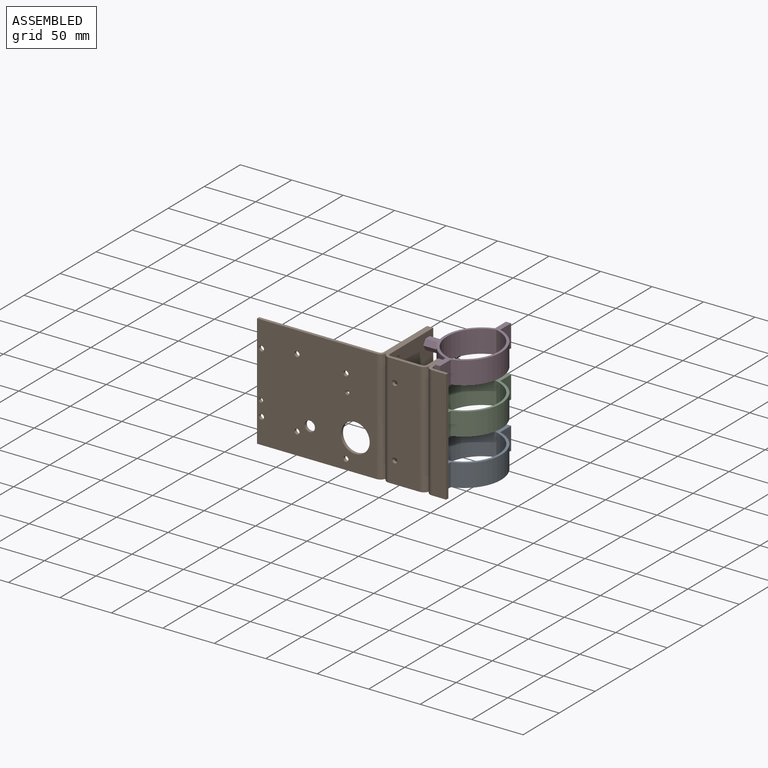
[diagram: assembled view]
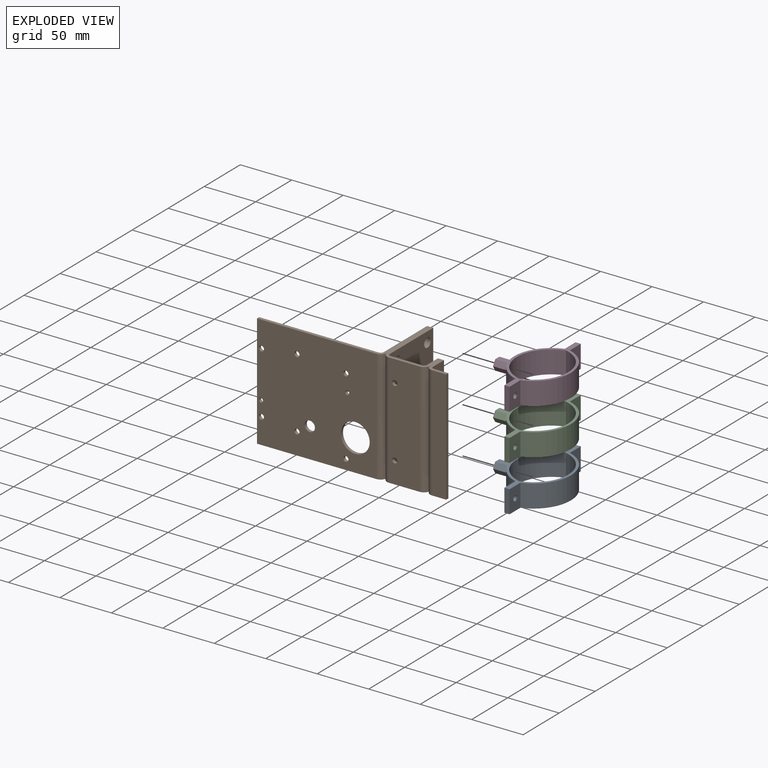
[diagram: exploded view]
GUIDED TOUR — MATED ASSEMBLY (Onshape document 4b753f03eef4fd3eba08fb76, AutoMate assembly 4b753f03eef4fd3eba08fb76_7e7e2e7f377febcd43e8f02e_78f5e5bae4203609382013f7_default)

This assembly has 4 components, labeled P0..P3 below (a component is one placed occurrence of a part; the same part can appear more than once), held together by 3 mates. A mate is a constraint between two components; its type names the relative motion it leaves free:
  CYLINDRICAL — leaves both rotation about and translation along the listed axis free.
Axis/direction vectors are unit vectors and 'through' points are millimeter coordinates, both in the assembly's world frame.

MATES
  1. CYLINDRICAL "Cylindrical 1": P3 <-> P1, axis (-1.000, 0.000, 0.000) through (-14.91, -64.95, 32.86) mm
  2. CYLINDRICAL "Cylindrical 3": P0 <-> P1, axis (-1.000, 0.000, 0.000) through (-14.91, -64.95, -57.14) mm
  3. CYLINDRICAL "Cylindrical 2": P2 <-> P1, axis (-1.000, 0.000, 0.000) through (-14.91, -64.95, -12.14) mm

ASSEMBLY ORDER
  1. P2 — the base component [order verified]
  2. P0 [order verified]
  3. P3 [order verified]
  4. P1 [order verified]
Order-tag legend:
  [order verified] — this step's position reverses a verified removal order: the component was checked to insert without passing through the ones already placed.

Of the 4 components, 3 carry the full construction recipe — the FeatureScript program that regenerates the part's solid from scratch; the rest are supplied as boundary geometry only.
Each toured component is shown spotlighted twice — in the assembled view, then in the exploded view, where a leader line traces a displaced component back to its assembled socket (saturated green if recipe-attached, orange if geometry-only; every other component desaturated gray) — followed by its recipe or geometry summary and the mates that hold it.
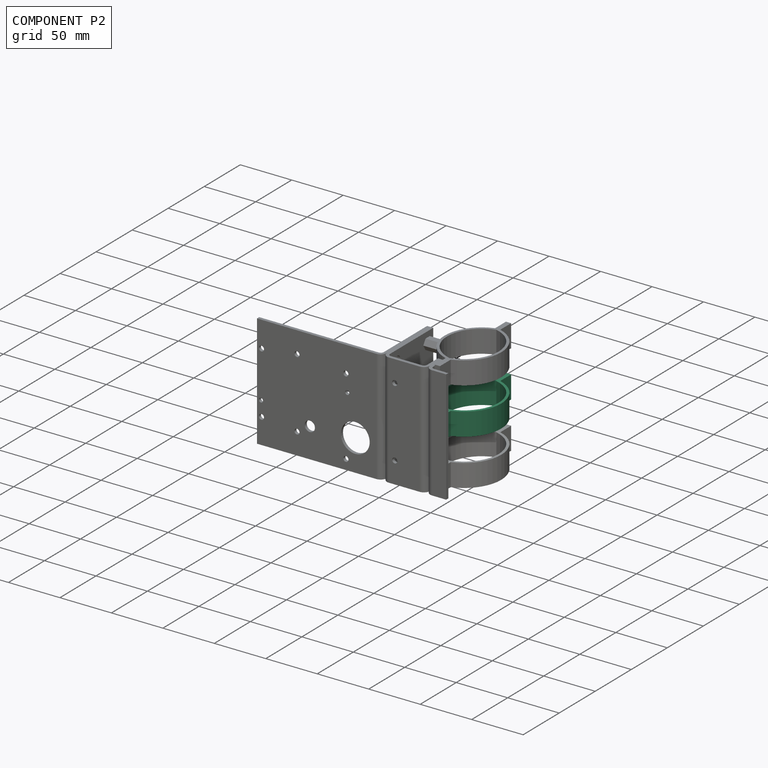
[diagram: component P2 — assembled]
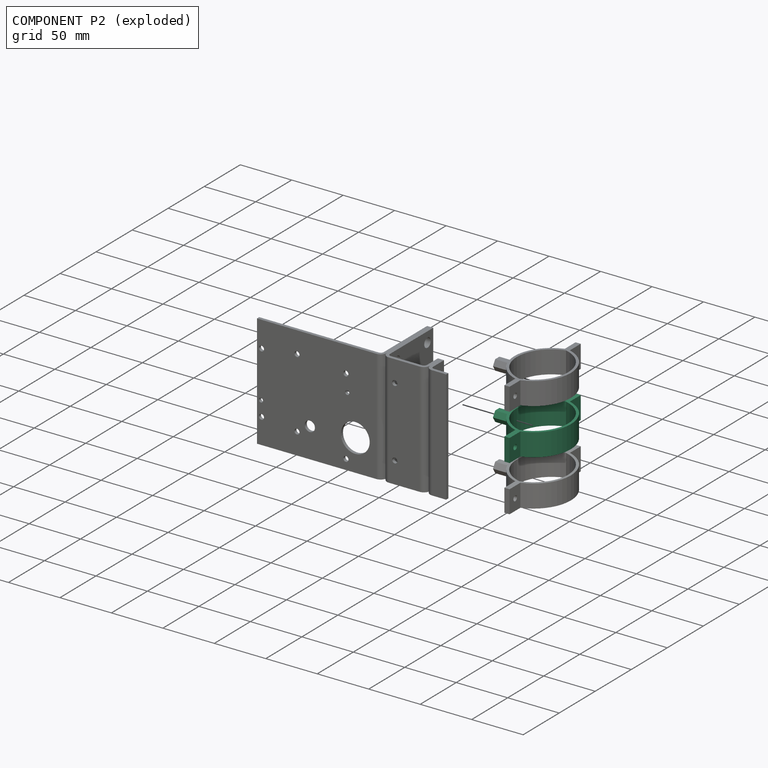
[diagram: component P2 — exploded]
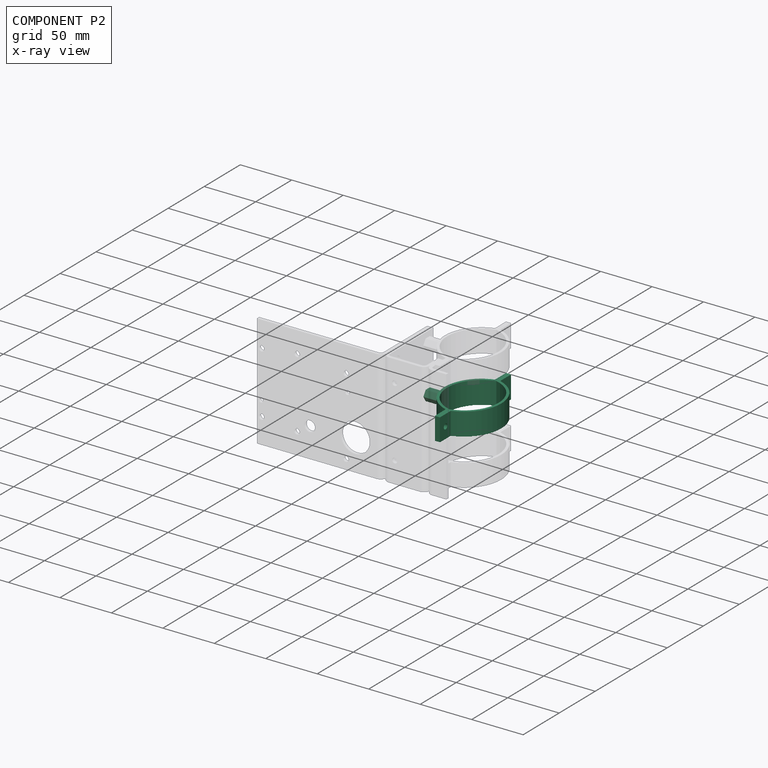
[diagram: component P2 — x-ray view]
COMPONENT P2 — same part as P0 (CADFS 00968753); its construction recipe is shown at P0.
Held by: CYLINDRICAL mate "Cylindrical 2" to P1.
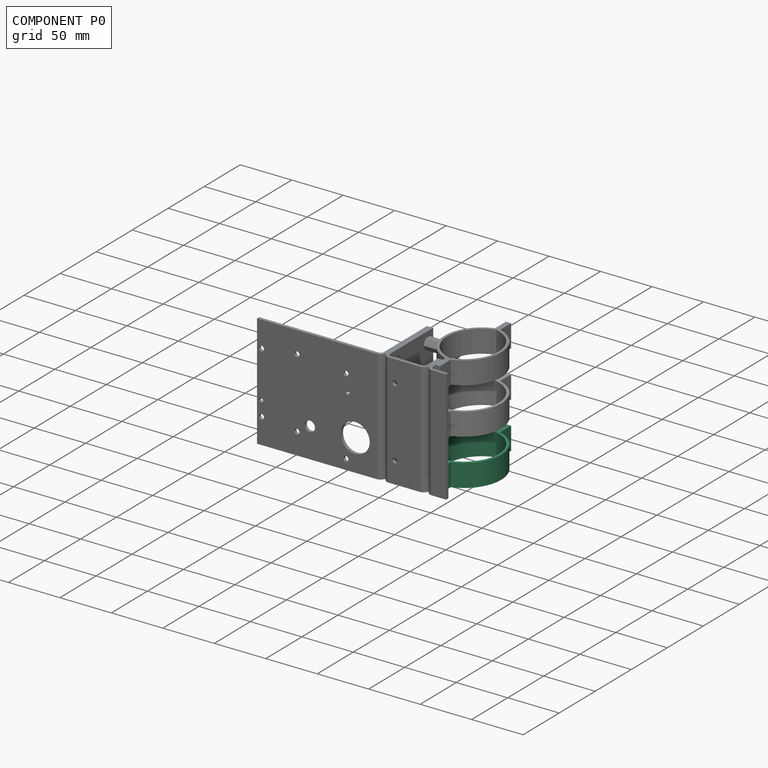
[diagram: component P0 — assembled]
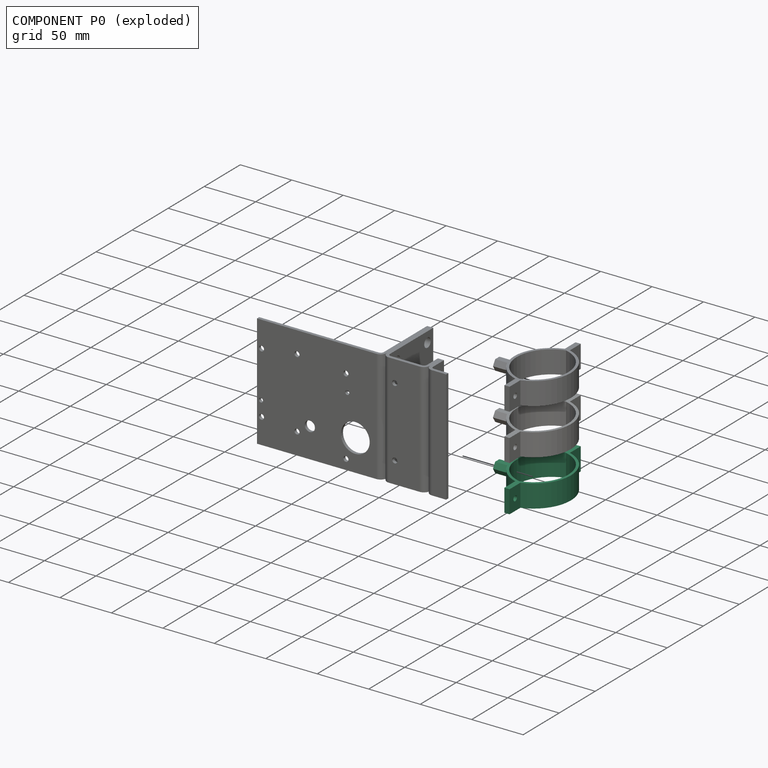
[diagram: component P0 — exploded]
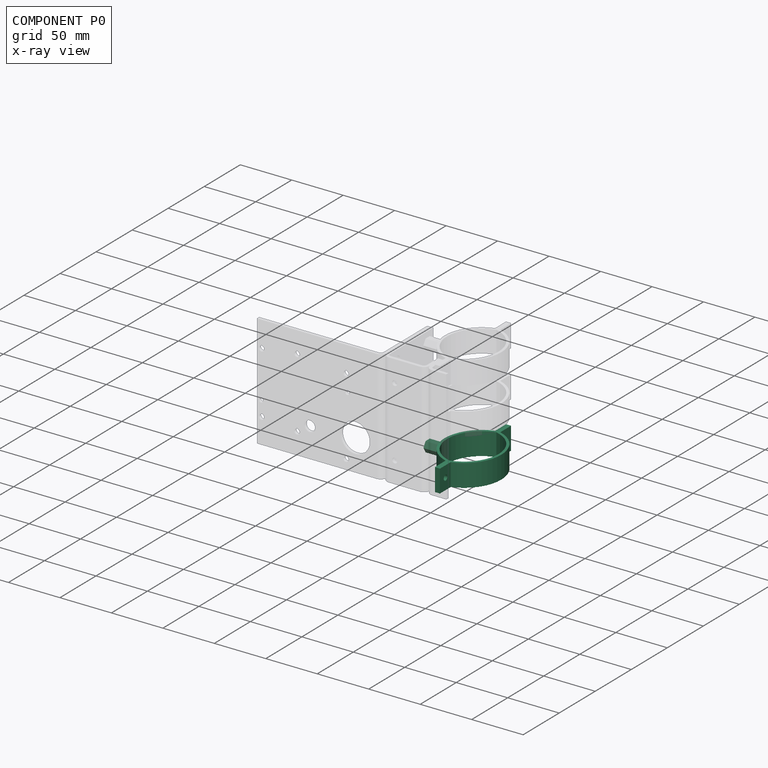
[diagram: component P0 — x-ray view]
COMPONENT P0 — recipe-attached (CADFS 00968753, mesh-verified: the recipe's output STEP matches this component's geometry to below the mesh-comparison resolution (tessellation chordal tolerance ~0.186 mm)).
Held by: CYLINDRICAL mate "Cylindrical 3" to P1.
Construction recipe (FeatureScript — the CAD program that rebuilds this solid; sketch coordinates are in the units given by the * unit suffixes, e.g. mm):

FeatureScript 1511;
import(path : "onshape/std/geometry.fs", version : "1511.0");
import(path : "onshape/std/common.fs", version : "1511.0");
const mm = millimeter;
const VERTEX = EntityType.VERTEX;
const EDGE = EntityType.EDGE;
const FACE = EntityType.FACE;
const BODY = EntityType.BODY;
function v(x, y){return vector(x, y);}
function OD(order){return orderDisambiguation(order);}
function OSD(set){return originalSetDisambiguation(set);}
function TD(topology){return topologyDisambiguation(topology);}
function TDD(query){return trueDependencyDisambiguation(query);}
function sQuery(a, b, c) {return sketchEntityQuery(a, b, c);}

annotation { "Feature Type Name" : "Feature", "Feature Type Description" : "" }
export const myFeature = defineFeature(function(context is Context, id is Id, definition is map)
    precondition{}
    {
        {
            var Q0;
            Q0=qCreatedBy(makeId("Top.planeOp"),FACE);
            var sketch = newSketch(context, id + "F0", { "sketchPlane" : qUnion([Q0])});
            skArc(sketch, "E0", {"start": v(32.5, 0) * mm, "mid": v(0, 25) * mm, "end": v(-32.5, 0) * mm});
            skLineSegment(sketch, "E1", {"start": v(-32.5, 0) * mm, "end": v(-49.37, 0) * mm});
            skLineSegment(sketch, "E2", {"start": v(-49.37, 0) * mm, "end": v(-49.37, 2.5) * mm});
            skLineSegment(sketch, "E3", {"start": v(-49.37, 2.5) * mm, "end": v(-34.37, 2.5) * mm});
            skLineSegment(sketch, "E4", {"start": v(32.5, 0) * mm, "end": v(49.37, 0) * mm});
            skLineSegment(sketch, "E5", {"start": v(49.37, 0) * mm, "end": v(49.37, 2.5) * mm});
            skLineSegment(sketch, "E6", {"start": v(49.37, 2.5) * mm, "end": v(34.37, 2.5) * mm});
            skArc(sketch, "E7", {"start": v(34.37, 2.5) * mm, "mid": v(0, 27.5) * mm, "end": v(-34.37, 2.5) * mm});
            skLineSegment(sketch, "E8.MirrorCS", {"start": v(49.37, 0) * mm, "end": v(49.37, -2.5) * mm});
            skLineSegment(sketch, "E9.MirrorCS", {"start": v(-49.37, 0) * mm, "end": v(-49.37, -2.5) * mm});
            skLineSegment(sketch, "E10.MirrorCS", {"start": v(-49.37, -2.5) * mm, "end": v(-34.37, -2.5) * mm});
            skLineSegment(sketch, "E11.MirrorCS", {"start": v(49.37, -2.5) * mm, "end": v(34.37, -2.5) * mm});
            skArc(sketch, "E12.MirrorCS", {"start": v(34.37, -2.5) * mm, "mid": v(0, -27.5) * mm, "end": v(-34.37, -2.5) * mm});
            skArc(sketch, "E13.MirrorCS", {"start": v(32.5, 0) * mm, "mid": v(0, -25) * mm, "end": v(-32.5, 0) * mm});
            skSolve(sketch);
        }
        {
            var Q0;
            Q0 = qSketchRegion(id + "F0", true);
            extrude(context, id + "F1", {"entities" : qUnion([Q0]), "depth" : 22 * mm, "offsetDistance" : 25 * mm});
        }
        {
            var Q0;
            Q0=qCreatedBy(makeId("Front.planeOp"),FACE);
            cPlane(context, id + "F2", {"entities" : qUnion([Q0]), "cplaneType" : CPlaneType.OFFSET, "offset" : 25 * mm, "width" : 150 * mm, "height" : 150 * mm});
        }
        {
            var Q0;
            Q0=qCreatedBy(id+"F2.planeOp",FACE);
            var sketch = newSketch(context, id + "F3", { "sketchPlane" : qUnion([Q0])});
            skLineSegment(sketch, "E14", {"start": v(2.93, 16) * mm, "end": v(-2.93, 16) * mm});
            skLineSegment(sketch, "E15", {"start": v(-2.93, 16) * mm, "end": v(-6, 11) * mm});
            skLineSegment(sketch, "E16", {"start": v(-6, 11) * mm, "end": v(-2.93, 6) * mm});
            skLineSegment(sketch, "E17", {"start": v(-2.93, 6) * mm, "end": v(2.93, 6) * mm});
            skLineSegment(sketch, "E18", {"start": v(2.93, 6) * mm, "end": v(6, 11) * mm});
            skLineSegment(sketch, "E19", {"start": v(2.93, 16) * mm, "end": v(6, 11) * mm});
            skSolve(sketch);
        }
        {
            var Q0;
            Q0 = qSketchRegion(id + "F3", true);
            extrude(context, id + "F4", {"entities" : qUnion([Q0]), "operationType" : NewBodyOperationType.ADD, "depth" : 19 * mm, "offsetDistance" : 25 * mm});
        }
        {
            var Q0;
            Q0=makeQuery(id+"F1.opExtrude","SWEPT_FACE",FACE,{"disambiguationData":[OSD([sQuery(id+"F0.wireOp",EDGE,"E11.MirrorCS")])]});
            var sketch = newSketch(context, id + "F5", { "sketchPlane" : qUnion([Q0])});
            skCircle(sketch, "E20", {"center": v(41.5, 11) * mm, "radius": 2.5 * mm});
            skCircle(sketch, "E21", {"center": v(-41.5, 11) * mm, "radius": 2.5 * mm});
            skSolve(sketch);
        }
        {
            var Q0;
            Q0 = qSketchRegion(id + "F5", true);
            extrude(context, id + "F6", {"entities" : qUnion([Q0]), "operationType" : NewBodyOperationType.REMOVE, "endBound" : BoundingType.UP_TO_NEXT, "oppositeDirection" : true, "depth" : 25 * mm, "offsetDistance" : 25 * mm});
        }
        {
            var Q0;
            Q0=makeQuery(id+"F4.opExtrude","CAP_FACE",FACE,{"disambiguationData":[OSD([sQuery(id+"F3.wireOp",EDGE,"E14"),sQuery(id+"F3.wireOp",EDGE,"E15"),sQuery(id+"F3.wireOp",EDGE,"E16"),sQuery(id+"F3.wireOp",EDGE,"E17"),sQuery(id+"F3.wireOp",EDGE,"E18"),sQuery(id+"F3.wireOp",EDGE,"E19")])],"isStart":false});
            var sketch = newSketch(context, id + "F7", { "sketchPlane" : qUnion([Q0])});
            skCircle(sketch, "E22", {"center": v(0, 11) * mm, "radius": 4.5 * mm});
            skSolve(sketch);
        }
        {
            var Q0;
            Q0 = qSketchRegion(id + "F7", true);
            extrude(context, id + "F8", {"entities" : qUnion([Q0]), "operationType" : NewBodyOperationType.REMOVE, "oppositeDirection" : true, "depth" : 8 * mm, "offsetDistance" : 25 * mm});
        }
    });
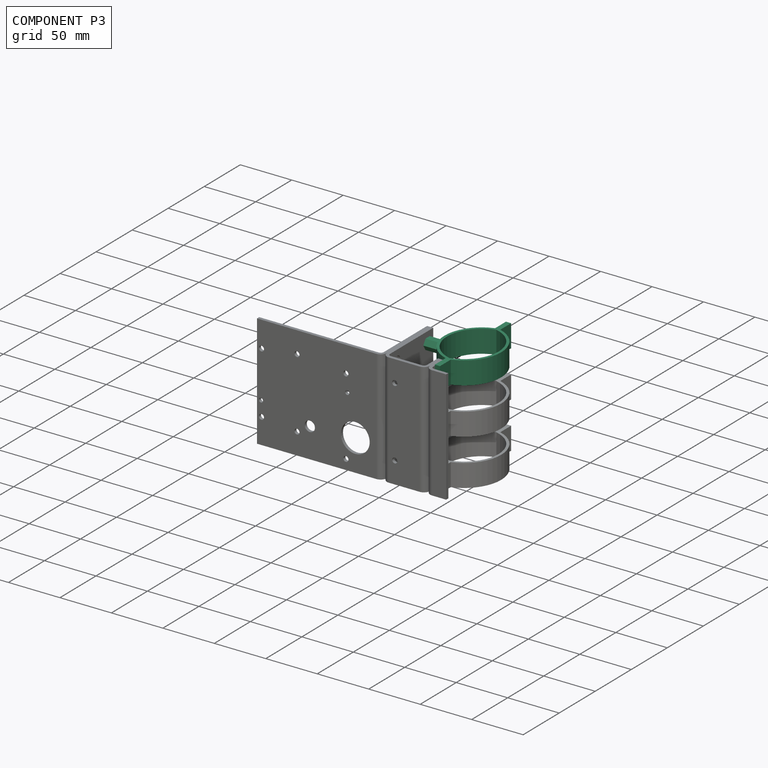
[diagram: component P3 — assembled]
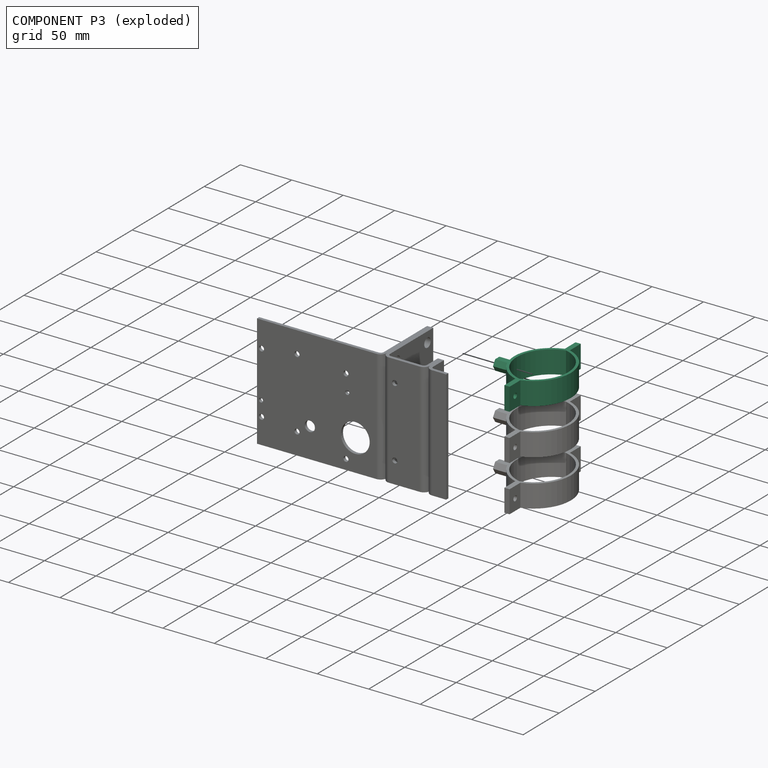
[diagram: component P3 — exploded]
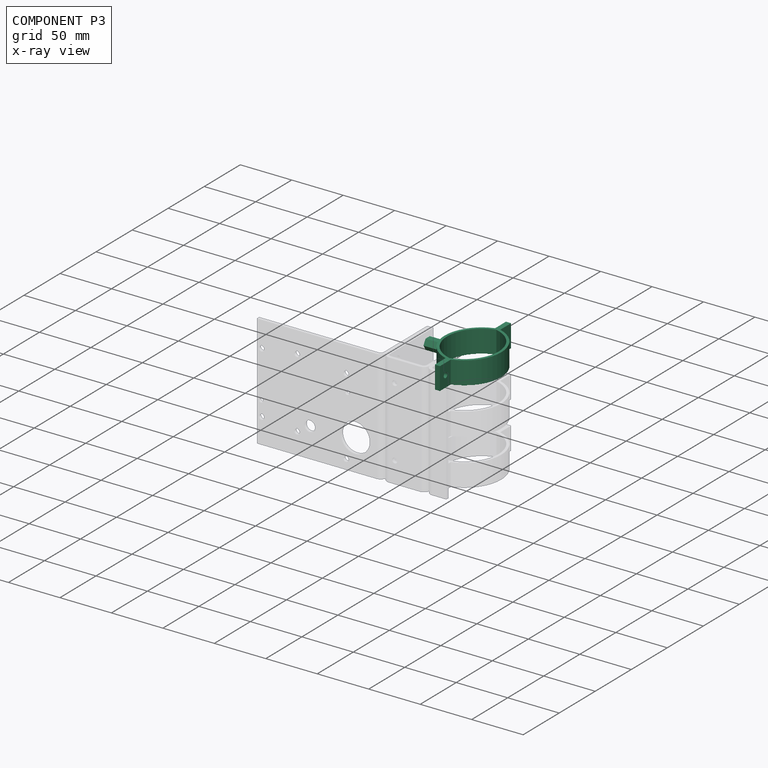
[diagram: component P3 — x-ray view]
COMPONENT P3 — same part as P0 (CADFS 00968753); its construction recipe is shown at P0.
Held by: CYLINDRICAL mate "Cylindrical 1" to P1.
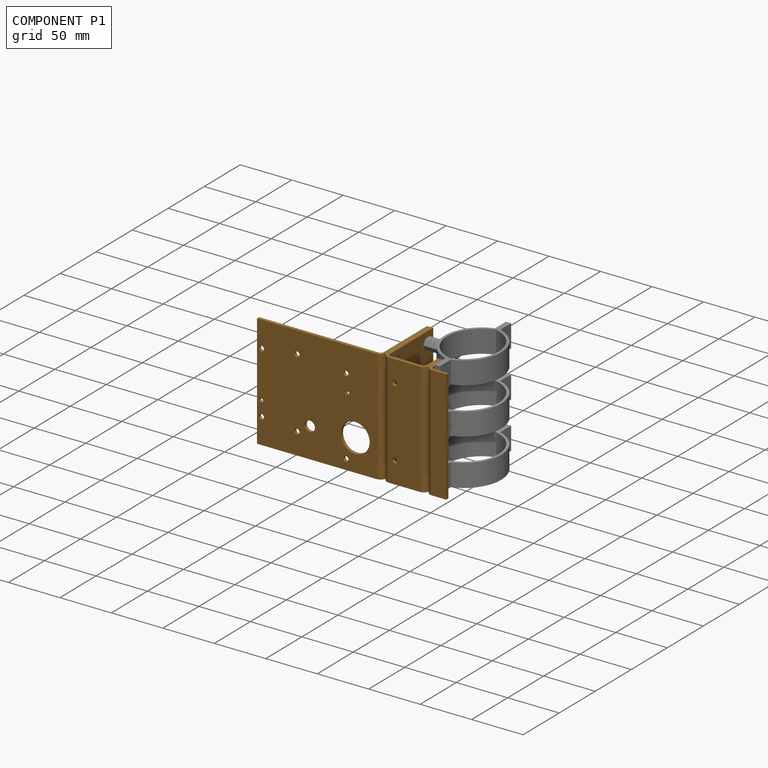
[diagram: component P1 — assembled]
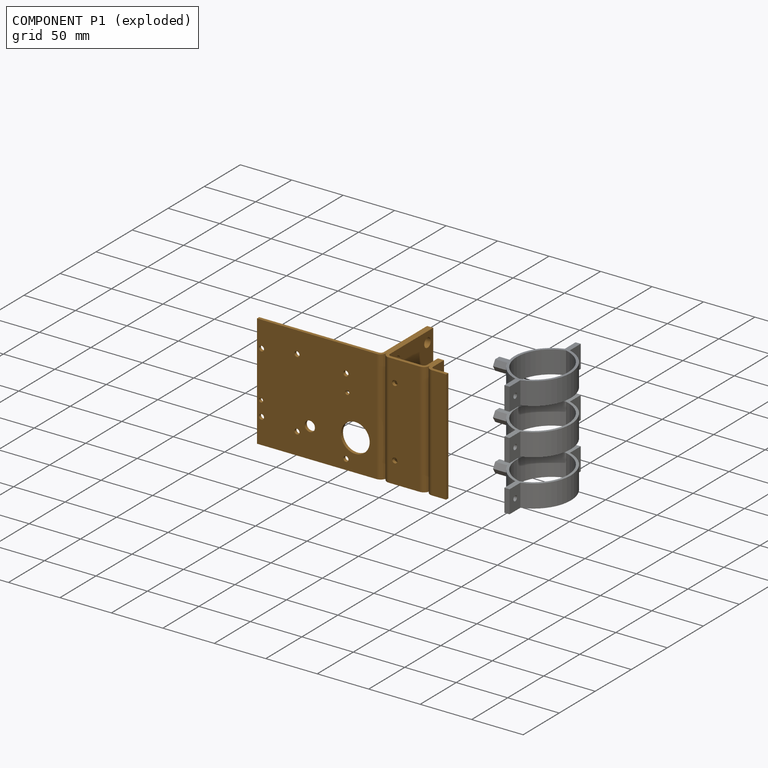
[diagram: component P1 — exploded]
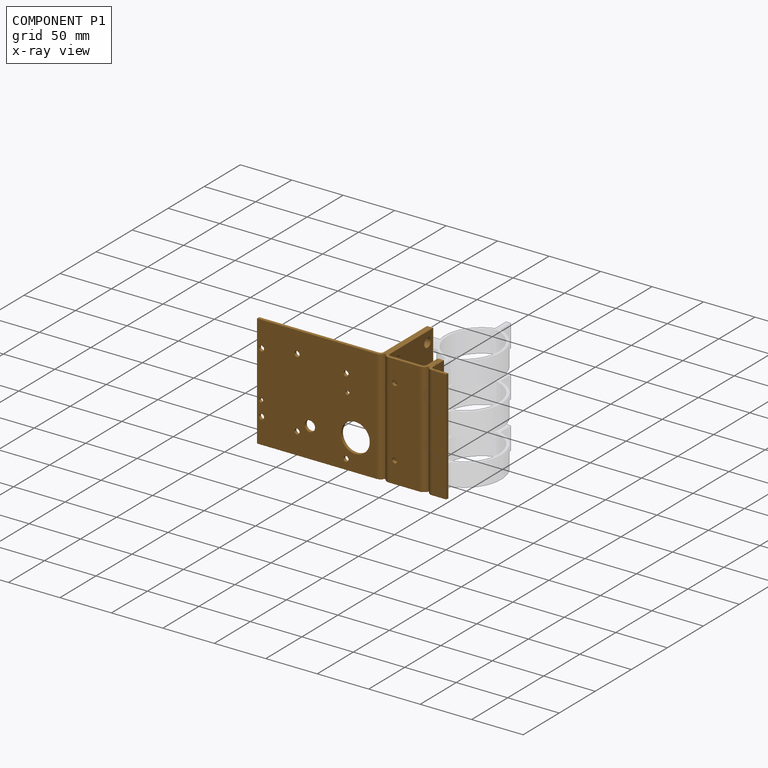
[diagram: component P1 — x-ray view]
COMPONENT P1 — geometry summary (no construction recipe available for this part):
  bounding box: 183.8 x 110.0 x 66.0 mm
  B-rep topology: 1 solid, 45 faces, 264 edges
  volume: 106276 mm^3 (8% of its bounding box)
Held by: CYLINDRICAL mate "Cylindrical 1" to P3; CYLINDRICAL mate "Cylindrical 3" to P0; CYLINDRICAL mate "Cylindrical 2" to P2.
PROVENANCE & LICENSES
Assembly (occurrences, transforms, mates, per-part STEP geometry): AutoMate dataset, Zenodo record 7776208, CC0.
Construction recipes: CADFS (HuggingFace VladPyatov/CADFS, CC-BY-4.0, layered over the ABC dataset), FeatureScript reconstruction programs keyed by ABC model id.
Join: ABC meta listings map ABC model id -> Onshape documentId; within a shared document, parts are matched by geometric signature (bounding-box dims + volume at 0.1% relative tolerance, exact B-rep face/solid counts).
Verification: 3 of this assembly's 4 components carry a recipe attachment, and every attachment is mesh-verified: the CADFS STEP and the AutoMate member STEP were compared as meshes in their shared local frame (symmetric sampled-point-to-mesh distance); worst across the 3 attachments: below the mesh-comparison resolution (tessellation chordal tolerance ~0.186 mm) on a 124 mm part.
Renders: orthographic iso camera (az 35 / el 25); the floor grid conveys scale (grid pitch printed in each image; no ruler). In the exploded view each component is displaced by its stored offset vector: the offsets alone carry the explosion direction (mate normal/axis signs are not orientation cues and do not encode it), and separation distances are assigned per mate-chain, not proportionally to assembly-order depth.
